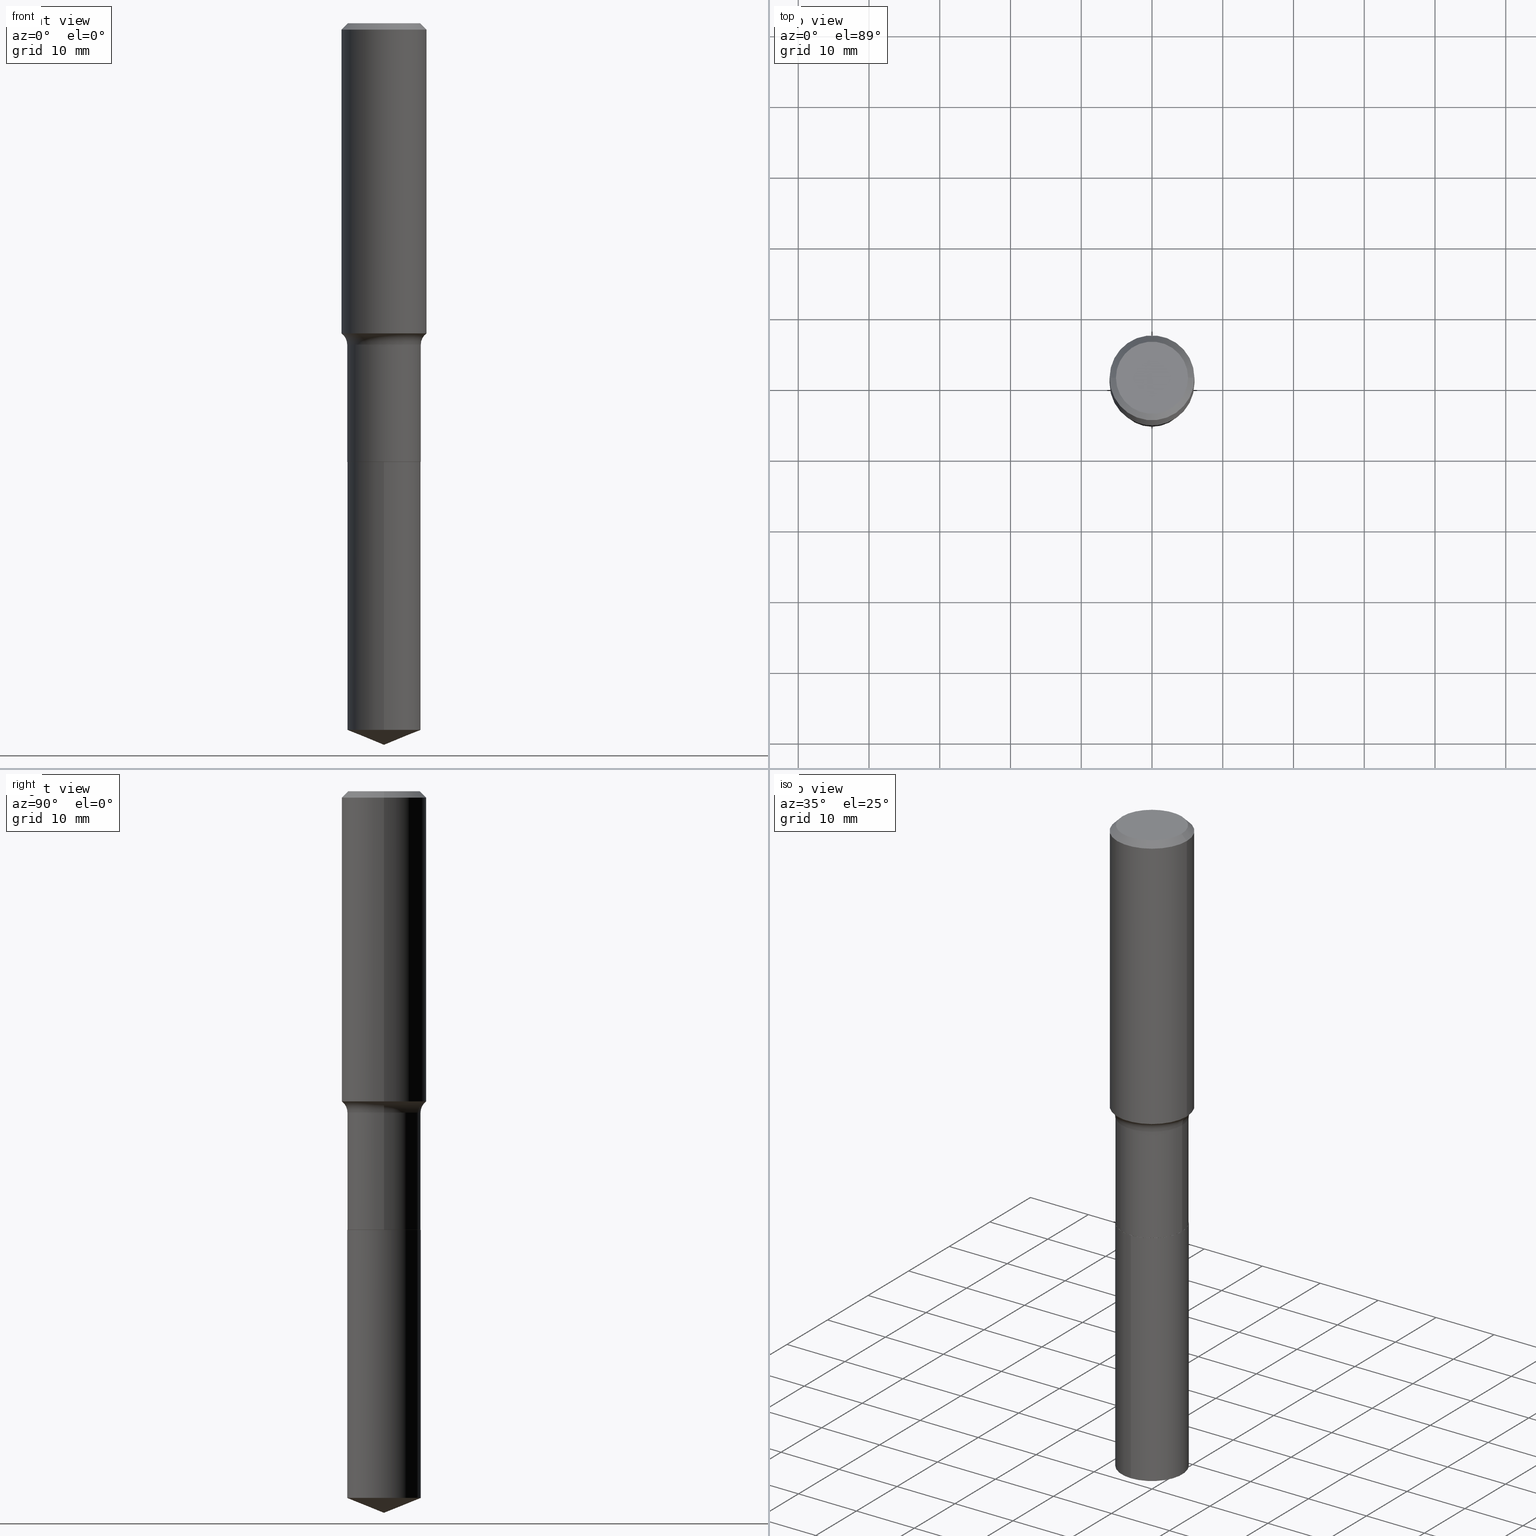
[diagram: canonical four-view strip — front | top / right | iso, engineering-drawing reading convention]
A machine part, canonical four-view strip (front | top / right | iso — engineering-drawing reading convention). The complete STEP part file that produces these views, byte-faithful:
ISO-10303-21;
HEADER;
FILE_DESCRIPTION (( 'STEP AP203' ),
    '1' );
FILE_NAME ('69194.STEP',
    '2024-04-19T17:21:34',
    ( '' ),
    ( '' ),
    'SwSTEP 2.0',
    'SolidWorks 2023',
    '' );
FILE_SCHEMA (( 'CONFIG_CONTROL_DESIGN' ));
ENDSEC;

DATA;
#1 = CARTESIAN_POINT ( 'NONE',  ( 5.969144809017299038E-29, -8.522356799982232966E-15, -2.440900000000000070 ) ) ;
#2 = CALENDAR_DATE ( 2024, 19, 4 ) ;
#3 = EDGE_LOOP ( 'NONE', ( #181, #429 ) ) ;
#4 = DIRECTION ( 'NONE',  ( 2.445425754346182208E-29, -3.491542991526886220E-15, -1.000000000000000000 ) ) ;
#5 = ORIENTED_EDGE ( 'NONE', *, *, #222, .T. ) ;
#6 = CIRCLE ( 'NONE', #45, 0.2047499999999999043 ) ;
#7 = LOCAL_TIME ( 13, 21, 34.00000000000000000, #101 ) ;
#8 = PERSON_AND_ORGANIZATION ( #128, #203 ) ;
#9 = DESIGN_CONTEXT ( 'detailed design', #133, 'design' ) ;
#10 = CYLINDRICAL_SURFACE ( 'NONE', #286, 0.2047499999999999876 ) ;
#11 = DIRECTION ( 'NONE',  ( -2.445468806185136597E-29, 3.491481338843145583E-15, 1.000000000000000000 ) ) ;
#12 = CYLINDRICAL_SURFACE ( 'NONE', #24, 0.2362000000000001043 ) ;
#13 = CIRCLE ( 'NONE', #124, 0.2362000000000002153 ) ;
#14 = AXIS2_PLACEMENT_3D ( 'NONE', #34, #96, #445 ) ;
#15 = EDGE_CURVE ( 'NONE', #164, #171, #13, .T. ) ;
#16 = EDGE_LOOP ( 'NONE', ( #425, #277, #351, #150 ) ) ;
#17 = EDGE_LOOP ( 'NONE', ( #37, #266, #374, #183 ) ) ;
#18 = DIRECTION ( 'NONE',  ( -2.445425754346182208E-29, 3.491542991526886614E-15, 1.000000000000000000 ) ) ;
#19 = AXIS2_PLACEMENT_3D ( 'NONE', #226, #169, #428 ) ;
#20 = CIRCLE ( 'NONE', #14, 0.07799999999999995826 ) ;
#21 = EDGE_CURVE ( 'NONE', #171, #365, #413, .T. ) ;
#22 = EDGE_LOOP ( 'NONE', ( #115, #466, #88 ) ) ;
#23 = VECTOR ( 'NONE', #458, 39.37007874015748143 ) ;
#24 = AXIS2_PLACEMENT_3D ( 'NONE', #469, #313, #355 ) ;
#25 = PERSON_AND_ORGANIZATION ( #128, #203 ) ;
#26 = VERTEX_POINT ( 'NONE', #295 ) ;
#27 = APPROVAL_STATUS ( 'not_yet_approved' ) ;
#28 = DIRECTION ( 'NONE',  ( 1.000000000000000000, -6.982962677686266711E-15, 4.883557194083112901E-29 ) ) ;
#29 = CIRCLE ( 'NONE', #202, 0.2007700000000000040 ) ;
#30 = AXIS2_PLACEMENT_3D ( 'NONE', #289, #442, #104 ) ;
#31 = ORIENTED_EDGE ( 'NONE', *, *, #21, .F. ) ;
#32 = PERSON_AND_ORGANIZATION ( #128, #203 ) ;
#33 = ORIENTED_EDGE ( 'NONE', *, *, #57, .T. ) ;
#34 = CARTESIAN_POINT ( 'NONE',  ( 0.2827499999999998903, -8.220343664172294704E-15, -1.788900000000000157 ) ) ;
#35 = PERSON_AND_ORGANIZATION ( #128, #203 ) ;
#36 = PRODUCT_RELATED_PRODUCT_CATEGORY ( 'detail', '', ( #356 ) ) ;
#37 = ORIENTED_EDGE ( 'NONE', *, *, #65, .F. ) ;
#38 = DIRECTION ( 'NONE',  ( -2.445425754346182208E-29, 3.491542991526886614E-15, 1.000000000000000000 ) ) ;
#39 = CARTESIAN_POINT ( 'NONE',  ( 0.2007700000000000040, -1.560767496960719672E-15, 4.096137381458473721E-18 ) ) ;
#40 = SECURITY_CLASSIFICATION ( '', '', #214 ) ;
#41 = DIRECTION ( 'NONE',  ( -6.982962677686266711E-15, -1.000000000000000000, 3.498761904101790876E-15 ) ) ;
#42 = EDGE_CURVE ( 'NONE', #148, #290, #325, .T. ) ;
#43 = CARTESIAN_POINT ( 'NONE',  ( -0.2827499999999998903, -4.236851381694821069E-15, -1.788900000000000157 ) ) ;
#44 = DIRECTION ( 'NONE',  ( -2.445468806185136597E-29, 3.491481338843145583E-15, 1.000000000000000000 ) ) ;
#45 = AXIS2_PLACEMENT_3D ( 'NONE', #195, #352, #168 ) ;
#46 = ADVANCED_FACE ( 'NONE', ( #146 ), #334, .T. ) ;
#47 =( GEOMETRIC_REPRESENTATION_CONTEXT ( 3 ) GLOBAL_UNCERTAINTY_ASSIGNED_CONTEXT ( ( #261 ) ) GLOBAL_UNIT_ASSIGNED_CONTEXT ( ( #68, #492, #145 ) ) REPRESENTATION_CONTEXT ( 'NONE', 'WORKASPACE' ) );
#48 = CARTESIAN_POINT ( 'NONE',  ( -0.2362000000000001043, 1.678301941865357380E-15, -1.161852468318209317E-29 ) ) ;
#49 = FACE_OUTER_BOUND ( 'NONE', #399, .T. ) ;
#50 = ORIENTED_EDGE ( 'NONE', *, *, #394, .F. ) ;
#51 = LINE ( 'NONE', #173, #400 ) ;
#52 = CC_DESIGN_SECURITY_CLASSIFICATION ( #40, ( #364 ) ) ;
#53 = ORIENTED_EDGE ( 'NONE', *, *, #57, .F. ) ;
#54 = EDGE_CURVE ( 'NONE', #26, #349, #381, .T. ) ;
#55 = AXIS2_PLACEMENT_3D ( 'NONE', #122, #77, #156 ) ;
#56 = PERSON_AND_ORGANIZATION_ROLE ( 'creator' ) ;
#57 = EDGE_CURVE ( 'NONE', #91, #365, #252, .T. ) ;
#58 = ORIENTED_EDGE ( 'NONE', *, *, #241, .T. ) ;
#59 = ORIENTED_EDGE ( 'NONE', *, *, #333, .T. ) ;
#60 = FACE_OUTER_BOUND ( 'NONE', #17, .T. ) ;
#61 = ORIENTED_EDGE ( 'NONE', *, *, #21, .T. ) ;
#62 = APPROVAL_DATE_TIME ( #438, #472 ) ;
#63 = VECTOR ( 'NONE', #292, 39.37007874015748143 ) ;
#64 = AXIS2_PLACEMENT_3D ( 'NONE', #157, #484, #194 ) ;
#65 = EDGE_CURVE ( 'NONE', #164, #349, #245, .T. ) ;
#66 = DIRECTION ( 'NONE',  ( 1.000000000000000000, -6.982962677686266711E-15, 0.000000000000000000 ) ) ;
#67 = DIRECTION ( 'NONE',  ( -2.445468806185136597E-29, 3.491481338843145583E-15, 1.000000000000000000 ) ) ;
#68 =( CONVERSION_BASED_UNIT ( 'INCH', #328 ) LENGTH_UNIT ( ) NAMED_UNIT ( #271 ) );
#69 = CARTESIAN_POINT ( 'NONE',  ( -1.001697619218023151E-46, 1.430158722866391908E-32, 4.096137381448114529E-18 ) ) ;
#70 = CARTESIAN_POINT ( 'NONE',  ( -8.645640321485652588E-28, 1.234414837980197635E-13, 35.35437874015748605 ) ) ;
#71 = EDGE_LOOP ( 'NONE', ( #212, #221, #249, #487 ) ) ;
#72 = CARTESIAN_POINT ( 'NONE',  ( 8.664295980313995239E-31, -1.237031838352134572E-16, -0.03543000000000023214 ) ) ;
#73 = CARTESIAN_POINT ( 'NONE',  ( -1.001697619218023151E-46, 1.430158722866391908E-32, 4.096137381448114529E-18 ) ) ;
#74 = ORIENTED_EDGE ( 'NONE', *, *, #54, .T. ) ;
#75 = CIRCLE ( 'NONE', #255, 0.2047499999999999876 ) ;
#76 = ORIENTED_EDGE ( 'NONE', *, *, #241, .F. ) ;
#77 = DIRECTION ( 'NONE',  ( -2.445468806185136597E-29, 3.491481338843145583E-15, 1.000000000000000000 ) ) ;
#78 = DIRECTION ( 'NONE',  ( -2.445468806185136597E-29, 3.491481338843145583E-15, 1.000000000000000000 ) ) ;
#79 = CARTESIAN_POINT ( 'NONE',  ( 0.2362000000000002153, -7.676766387154458967E-15, -1.726313280162641517 ) ) ;
#80 = CARTESIAN_POINT ( 'NONE',  ( 0.2042499999999999871, -9.948626926899652657E-15, -2.440900000000000070 ) ) ;
#81 = DIRECTION ( 'NONE',  ( 2.445468806185136597E-29, -3.491481338843145583E-15, -1.000000000000000000 ) ) ;
#82 = CARTESIAN_POINT ( 'NONE',  ( 9.820096201727962755E-29, -1.402098919107451851E-14, -4.015699999999999825 ) ) ;
#83 = CONICAL_SURFACE ( 'NONE', #19, 97.44436430772944391, 1.186823891356148630 ) ;
#84 = APPROVAL ( #151, 'UNSPECIFIED' ) ;
#85 = AXIS2_PLACEMENT_3D ( 'NONE', #237, #433, #361 ) ;
#86 = ORIENTED_EDGE ( 'NONE', *, *, #387, .F. ) ;
#87 = FACE_OUTER_BOUND ( 'NONE', #178, .T. ) ;
#88 = ORIENTED_EDGE ( 'NONE', *, *, #264, .F. ) ;
#89 = CIRCLE ( 'NONE', #176, 0.2047499999999999043 ) ;
#90 = DIRECTION ( 'NONE',  ( -2.445468806185136597E-29, 3.491481338843145583E-15, 1.000000000000000000 ) ) ;
#91 = VERTEX_POINT ( 'NONE', #39 ) ;
#92 = ADVANCED_FACE ( 'NONE', ( #193 ), #10, .T. ) ;
#93 = VECTOR ( 'NONE', #196, 39.37007874015748143 ) ;
#94 = AXIS2_PLACEMENT_3D ( 'NONE', #453, #4, #114 ) ;
#95 = LOCAL_TIME ( 13, 21, 34.00000000000000000, #377 ) ;
#96 = DIRECTION ( 'NONE',  ( -6.982962677686266711E-15, -1.000000000000000000, 3.491481338843145583E-15 ) ) ;
#97 = ORIENTED_EDGE ( 'NONE', *, *, #398, .F. ) ;
#98 = EDGE_CURVE ( 'NONE', #290, #188, #224, .T. ) ;
#99 = CARTESIAN_POINT ( 'NONE',  ( 5.969144809017299038E-29, -8.522356799982232966E-15, -2.440900000000000070 ) ) ;
#100 = DIRECTION ( 'NONE',  ( 1.000000000000000000, -6.982962677686266711E-15, 4.876176775795935793E-29 ) ) ;
#101 = COORDINATED_UNIVERSAL_TIME_OFFSET ( 5, 0, .BEHIND. ) ;
#102 = PRODUCT_DEFINITION ( 'UNKNOWN', '', #364, #9 ) ;
#103 = DIRECTION ( 'NONE',  ( 1.000000000000000000, -6.982962677686266711E-15, 4.876176775795936353E-29 ) ) ;
#104 = DIRECTION ( 'NONE',  ( 1.000000000000000000, 0.000000000000000000, 0.000000000000000000 ) ) ;
#105 = VECTOR ( 'NONE', #218, 39.37007874015748143 ) ;
#106 = AXIS2_PLACEMENT_3D ( 'NONE', #267, #393, #200 ) ;
#107 = CARTESIAN_POINT ( 'NONE',  ( -0.2047499999999999598, 1.454836251468804845E-15, -1.007151959729691630E-29 ) ) ;
#108 = LINE ( 'NONE', #482, #192 ) ;
#109 = EDGE_LOOP ( 'NONE', ( #244, #119, #282, #407 ) ) ;
#110 = CARTESIAN_POINT ( 'NONE',  ( 9.820096201727964997E-29, -1.402098919107452008E-14, -4.015699999999999825 ) ) ;
#111 = DIRECTION ( 'NONE',  ( -2.445425754346182208E-29, 3.491542991526886614E-15, 1.000000000000000000 ) ) ;
#112 = VERTEX_POINT ( 'NONE', #344 ) ;
#113 = DIRECTION ( 'NONE',  ( -1.000000000000000000, 6.982962677686266711E-15, 0.000000000000000000 ) ) ;
#114 = DIRECTION ( 'NONE',  ( 6.982962677686265922E-15, 1.000000000000000000, -3.491542991526886220E-15 ) ) ;
#115 = ORIENTED_EDGE ( 'NONE', *, *, #177, .F. ) ;
#116 = TOROIDAL_SURFACE ( 'NONE', #383, 0.2827499999999998903, 0.07799999999999997213 ) ;
#117 = APPROVAL_DATE_TIME ( #467, #84 ) ;
#118 = DIRECTION ( 'NONE',  ( -2.445468806185136597E-29, 3.491481338843145583E-15, 1.000000000000000000 ) ) ;
#119 = ORIENTED_EDGE ( 'NONE', *, *, #264, .T. ) ;
#120 = EDGE_CURVE ( 'NONE', #148, #26, #155, .T. ) ;
#121 = EDGE_LOOP ( 'NONE', ( #475, #74, #300, #97 ) ) ;
#122 = CARTESIAN_POINT ( 'NONE',  ( 0.000000000000000000, 0.000000000000000000, 0.000000000000000000 ) ) ;
#123 = VERTEX_POINT ( 'NONE', #465 ) ;
#124 = AXIS2_PLACEMENT_3D ( 'NONE', #331, #11, #66 ) ;
#125 = VECTOR ( 'NONE', #239, 39.37007874015748143 ) ;
#126 = DIRECTION ( 'NONE',  ( -2.445425754346182208E-29, 3.491542991526886614E-15, 1.000000000000000000 ) ) ;
#127 = ORIENTED_EDGE ( 'NONE', *, *, #291, .F. ) ;
#128 = PERSON ( 'UNSPECIFIED', 'UNSPECIFIED', 'UNSPECIFIED', ('UNSPECIFIED'), ('UNSPECIFIED'), ('UNSPECIFIED') ) ;
#129 = CC_DESIGN_PERSON_AND_ORGANIZATION_ASSIGNMENT ( #25, #217, ( #356 ) ) ;
#130 = EDGE_LOOP ( 'NONE', ( #58, #404 ) ) ;
#131 = VECTOR ( 'NONE', #375, 39.37007874015748143 ) ;
#132 = CIRCLE ( 'NONE', #479, 0.2042499999999999871 ) ;
#133 = APPLICATION_CONTEXT ( 'configuration controlled 3d designs of mechanical parts and assemblies' ) ;
#134 = CARTESIAN_POINT ( 'NONE',  ( -0.2361999999999999933, 1.525672600634282748E-15, -0.03543000000000023214 ) ) ;
#135 = ADVANCED_FACE ( 'NONE', ( #238 ), #83, .T. ) ;
#136 = CC_DESIGN_PERSON_AND_ORGANIZATION_ASSIGNMENT ( #209, #189, ( #364 ) ) ;
#137 = EDGE_LOOP ( 'NONE', ( #53, #320, #185, #262 ) ) ;
#138 = DIRECTION ( 'NONE',  ( 1.000000000000000000, -6.982962677686265922E-15, 0.000000000000000000 ) ) ;
#139 = LINE ( 'NONE', #201, #471 ) ;
#140 = ADVANCED_FACE ( 'NONE', ( #232 ), #357, .T. ) ;
#141 = CALENDAR_DATE ( 2024, 19, 4 ) ;
#142 = AXIS2_PLACEMENT_3D ( 'NONE', #278, #81, #167 ) ;
#143 = DIRECTION ( 'NONE',  ( 1.000000000000000000, -6.982962677686265922E-15, 0.000000000000000000 ) ) ;
#144 = AXIS2_PLACEMENT_3D ( 'NONE', #69, #118, #220 ) ;
#145 =( NAMED_UNIT ( * ) SI_UNIT ( $, .STERADIAN. ) SOLID_ANGLE_UNIT ( ) );
#146 = FACE_OUTER_BOUND ( 'NONE', #16, .T. ) ;
#147 = DATE_AND_TIME ( #401, #256 ) ;
#148 = VERTEX_POINT ( 'NONE', #346 ) ;
#149 = EDGE_LOOP ( 'NONE', ( #59, #464, #76, #410 ) ) ;
#150 = ORIENTED_EDGE ( 'NONE', *, *, #403, .F. ) ;
#151 = APPROVAL_STATUS ( 'not_yet_approved' ) ;
#152 = DIRECTION ( 'NONE',  ( -2.445425754346182208E-29, 3.491542991526886614E-15, 1.000000000000000000 ) ) ;
#153 = CARTESIAN_POINT ( 'NONE',  ( 5.969144809017299038E-29, -8.522356799982232966E-15, -2.440900000000000070 ) ) ;
#154 = DIRECTION ( 'NONE',  ( -2.445425754346182208E-29, 3.491542991526886220E-15, 1.000000000000000000 ) ) ;
#155 = LINE ( 'NONE', #306, #23 ) ;
#156 = DIRECTION ( 'NONE',  ( 1.000000000000000000, -6.982962677686266711E-15, 4.876176775795936353E-29 ) ) ;
#157 = CARTESIAN_POINT ( 'NONE',  ( 5.967922074614207358E-29, -8.520611059312812251E-15, -2.440399999999999903 ) ) ;
#158 = ADVANCED_FACE ( 'NONE', ( #49 ), #12, .T. ) ;
#159 = AXIS2_PLACEMENT_3D ( 'NONE', #70, #111, #41 ) ;
#160 = DIRECTION ( 'NONE',  ( -1.000000000000000000, 6.982962677686265922E-15, -4.876176775795935793E-29 ) ) ;
#161 = DIRECTION ( 'NONE',  ( 1.000000000000000000, -6.982962677686268288E-15, 0.000000000000000000 ) ) ;
#162 = PLANE ( 'NONE',  #85 ) ;
#163 = ORIENTED_EDGE ( 'NONE', *, *, #403, .T. ) ;
#164 = VERTEX_POINT ( 'NONE', #315 ) ;
#165 = DIRECTION ( 'NONE',  ( 2.445468806185136597E-29, -3.491481338843145583E-15, -1.000000000000000000 ) ) ;
#166 = ORIENTED_EDGE ( 'NONE', *, *, #15, .F. ) ;
#167 = DIRECTION ( 'NONE',  ( -1.000000000000000000, 6.982962677686266711E-15, 0.000000000000000000 ) ) ;
#168 = DIRECTION ( 'NONE',  ( 1.000000000000000000, -6.982962677686265922E-15, 0.000000000000000000 ) ) ;
#169 = DIRECTION ( 'NONE',  ( -2.445425754346182208E-29, 3.491542991526886614E-15, 1.000000000000000000 ) ) ;
#170 = ADVANCED_FACE ( 'NONE', ( #87 ), #395, .F. ) ;
#171 = VERTEX_POINT ( 'NONE', #79 ) ;
#172 = AXIS2_PLACEMENT_3D ( 'NONE', #457, #78, #486 ) ;
#173 = CARTESIAN_POINT ( 'NONE',  ( 0.2047499999999999598, -1.429761608256262896E-15, 9.983971948442177163E-30 ) ) ;
#174 = EDGE_LOOP ( 'NONE', ( #415, #33, #5, #50 ) ) ;
#175 = LINE ( 'NONE', #134, #125 ) ;
#176 = AXIS2_PLACEMENT_3D ( 'NONE', #323, #402, #138 ) ;
#177 = EDGE_CURVE ( 'NONE', #342, #450, #350, .T. ) ;
#178 = EDGE_LOOP ( 'NONE', ( #243, #318 ) ) ;
#179 = EDGE_LOOP ( 'NONE', ( #309, #483, #310, #213 ) ) ;
#180 = PERSON_AND_ORGANIZATION_ROLE ( 'classification_officer' ) ;
#181 = ORIENTED_EDGE ( 'NONE', *, *, #197, .F. ) ;
#182 = CARTESIAN_POINT ( 'NONE',  ( 0.2362000000000001043, -1.649375784469496920E-15, 1.151752954443000508E-29 ) ) ;
#183 = ORIENTED_EDGE ( 'NONE', *, *, #354, .T. ) ;
#184 = DATE_AND_TIME ( #2, #199 ) ;
#185 = ORIENTED_EDGE ( 'NONE', *, *, #394, .T. ) ;
#186 = DIRECTION ( 'NONE',  ( -2.445425754346182208E-29, 3.491542991526886614E-15, 1.000000000000000000 ) ) ;
#187 = DIRECTION ( 'NONE',  ( -1.000000000000000000, 7.105427357601001859E-15, 0.000000000000000000 ) ) ;
#188 = VERTEX_POINT ( 'NONE', #273 ) ;
#189 = PERSON_AND_ORGANIZATION_ROLE ( 'design_supplier' ) ;
#190 = DIRECTION ( 'NONE',  ( -6.982962677686265922E-15, -1.000000000000000000, 4.002707683024561674E-15 ) ) ;
#191 = CONICAL_SURFACE ( 'NONE', #159, 97.44436430772944391, 1.186823891356148630 ) ;
#192 = VECTOR ( 'NONE', #268, 39.37007874015748143 ) ;
#193 = FACE_OUTER_BOUND ( 'NONE', #109, .T. ) ;
#194 = DIRECTION ( 'NONE',  ( 1.000000000000000000, -6.982962677686268288E-15, 0.000000000000000000 ) ) ;
#195 = CARTESIAN_POINT ( 'NONE',  ( 4.374699147384591399E-29, -6.245910967056503960E-15, -1.788900000000000157 ) ) ;
#196 = DIRECTION ( 'NONE',  ( 0.7071067811866199593, -2.468850131083015945E-15, 0.7071067811864750752 ) ) ;
#197 = EDGE_CURVE ( 'NONE', #290, #148, #132, .T. ) ;
#198 = AXIS2_PLACEMENT_3D ( 'NONE', #444, #67, #103 ) ;
#199 = LOCAL_TIME ( 13, 21, 34.00000000000000000, #332 ) ;
#200 = DIRECTION ( 'NONE',  ( 1.000000000000000000, -6.982962677686266711E-15, 0.000000000000000000 ) ) ;
#201 = CARTESIAN_POINT ( 'NONE',  ( 1.454836251468864404E-15, 0.2047499999999914388, -2.440900000000000514 ) ) ;
#202 = AXIS2_PLACEMENT_3D ( 'NONE', #73, #223, #385 ) ;
#203 = ORGANIZATION ( 'UNSPECIFIED', 'UNSPECIFIED', '' ) ;
#204 = DIRECTION ( 'NONE',  ( -2.445468806185136877E-29, 3.491481338843145188E-15, 1.000000000000000000 ) ) ;
#205 = EDGE_LOOP ( 'NONE', ( #127, #336, #248 ) ) ;
#206 = DIRECTION ( 'NONE',  ( 1.000000000000000000, -6.982962677686265922E-15, 0.000000000000000000 ) ) ;
#207 = ADVANCED_FACE ( 'NONE', ( #259 ), #335, .F. ) ;
#208 = CIRCLE ( 'NONE', #285, 0.2047499999999999876 ) ;
#209 = PERSON_AND_ORGANIZATION ( #128, #203 ) ;
#210 = CARTESIAN_POINT ( 'NONE',  ( 5.969144809017299038E-29, -8.522356799982232966E-15, -2.440900000000000070 ) ) ;
#211 = PERSON_AND_ORGANIZATION ( #128, #203 ) ;
#212 = ORIENTED_EDGE ( 'NONE', *, *, #120, .F. ) ;
#213 = ORIENTED_EDGE ( 'NONE', *, *, #98, .F. ) ;
#214 = SECURITY_CLASSIFICATION_LEVEL ( 'unclassified' ) ;
#215 = CONICAL_SURFACE ( 'NONE', #172, 0.2042499999999999871, 0.7853981633975507526 ) ;
#216 = DIRECTION ( 'NONE',  ( -2.445468806185136597E-29, 3.491481338843145583E-15, 1.000000000000000000 ) ) ;
#217 = PERSON_AND_ORGANIZATION_ROLE ( 'design_owner' ) ;
#218 = DIRECTION ( 'NONE',  ( 0.7071067811865452413, -7.319954787623248157E-15, -0.7071067811865497932 ) ) ;
#219 =( LENGTH_UNIT ( ) NAMED_UNIT ( * ) SI_UNIT ( $, .METRE. ) );
#220 = DIRECTION ( 'NONE',  ( 1.000000000000000000, -6.982962677686266711E-15, 4.876140833081945105E-29 ) ) ;
#221 = ORIENTED_EDGE ( 'NONE', *, *, #42, .T. ) ;
#222 = EDGE_CURVE ( 'NONE', #365, #420, #347, .T. ) ;
#223 = DIRECTION ( 'NONE',  ( -2.445468806185136597E-29, 3.491481338843145583E-15, 1.000000000000000000 ) ) ;
#224 = LINE ( 'NONE', #386, #93 ) ;
#225 = ADVANCED_BREP_SHAPE_REPRESENTATION ( '69194', ( #490, #317, #30 ), #47 ) ;
#226 = CARTESIAN_POINT ( 'NONE',  ( -8.645640321485652588E-28, 1.234414837980197635E-13, 35.35437874015748605 ) ) ;
#227 = DIRECTION ( 'NONE',  ( -6.474490251793187306E-15, -0.9271838545667877574, 0.3746065934159110156 ) ) ;
#228 = DIRECTION ( 'NONE',  ( 6.588037525764801546E-15, 0.9271838545667904219, 0.3746065934159046318 ) ) ;
#229 = ORIENTED_EDGE ( 'NONE', *, *, #470, .F. ) ;
#230 = DIRECTION ( 'NONE',  ( -6.982962677686265922E-15, -1.000000000000000000, 4.002707683024561674E-15 ) ) ;
#231 = AXIS2_PLACEMENT_3D ( 'NONE', #265, #418, #28 ) ;
#232 = FACE_OUTER_BOUND ( 'NONE', #137, .T. ) ;
#233 = CARTESIAN_POINT ( 'NONE',  ( 4.374699147384591399E-29, -6.245910967056503960E-15, -1.788900000000000157 ) ) ;
#234 = ORIENTED_EDGE ( 'NONE', *, *, #65, .T. ) ;
#235 = EDGE_CURVE ( 'NONE', #91, #406, #358, .T. ) ;
#236 = FACE_OUTER_BOUND ( 'NONE', #3, .T. ) ;
#237 = CARTESIAN_POINT ( 'NONE',  ( 5.969144809017299038E-29, -8.522356799982232966E-15, -2.440900000000000070 ) ) ;
#238 = FACE_OUTER_BOUND ( 'NONE', #22, .T. ) ;
#239 = DIRECTION ( 'NONE',  ( -0.7071067811865452413, 2.468850131082233000E-15, -0.7071067811865497932 ) ) ;
#240 = EDGE_LOOP ( 'NONE', ( #376, #281, #61, #86 ) ) ;
#241 = EDGE_CURVE ( 'NONE', #370, #123, #422, .T. ) ;
#242 = VECTOR ( 'NONE', #227, 39.37007874015749564 ) ;
#243 = ORIENTED_EDGE ( 'NONE', *, *, #305, .T. ) ;
#244 = ORIENTED_EDGE ( 'NONE', *, *, #485, .F. ) ;
#245 = CIRCLE ( 'NONE', #270, 0.07799999999999995826 ) ;
#246 = CC_DESIGN_APPROVAL ( #312, ( #102 ) ) ;
#247 = PERSON_AND_ORGANIZATION_ROLE ( 'creator' ) ;
#248 = ORIENTED_EDGE ( 'NONE', *, *, #333, .F. ) ;
#249 = ORIENTED_EDGE ( 'NONE', *, *, #98, .T. ) ;
#250 = APPROVAL_STATUS ( 'not_yet_approved' ) ;
#251 = CARTESIAN_POINT ( 'NONE',  ( 5.969144809017299038E-29, -8.522356799982232966E-15, -2.440900000000000070 ) ) ;
#252 = LINE ( 'NONE', #257, #105 ) ;
#253 = CARTESIAN_POINT ( 'NONE',  ( 9.617904982688033762E-29, -1.373200300964548210E-14, -3.932975630260252764 ) ) ;
#254 = APPLICATION_PROTOCOL_DEFINITION ( 'international standard', 'config_control_design', 1994, #321 ) ;
#255 = AXIS2_PLACEMENT_3D ( 'NONE', #253, #18, #263 ) ;
#256 = LOCAL_TIME ( 13, 21, 34.00000000000000000, #288 ) ;
#257 = CARTESIAN_POINT ( 'NONE',  ( 0.2361999999999999933, -1.744152810908849053E-15, -0.03543000000000023214 ) ) ;
#258 = APPROVAL_DATE_TIME ( #147, #312 ) ;
#259 = FACE_OUTER_BOUND ( 'NONE', #130, .T. ) ;
#260 = CARTESIAN_POINT ( 'NONE',  ( -1.429761608256166261E-15, -0.2047500000000136156, -3.932975630260252320 ) ) ;
#261 = UNCERTAINTY_MEASURE_WITH_UNIT (LENGTH_MEASURE( 1.000000000000000082E-05 ), #68, 'distance_accuracy_value', 'NONE');
#262 = ORIENTED_EDGE ( 'NONE', *, *, #387, .T. ) ;
#263 = DIRECTION ( 'NONE',  ( -6.982962677686265922E-15, -1.000000000000000000, 2.668471788683041116E-15 ) ) ;
#264 = EDGE_CURVE ( 'NONE', #450, #427, #411, .T. ) ;
#265 = CARTESIAN_POINT ( 'NONE',  ( 4.374699147384591399E-29, -6.245910967056503960E-15, -1.788900000000000157 ) ) ;
#266 = ORIENTED_EDGE ( 'NONE', *, *, #389, .F. ) ;
#267 = CARTESIAN_POINT ( 'NONE',  ( 4.221645276340882114E-29, -6.027390602684960864E-15, -1.726313280162641517 ) ) ;
#268 = DIRECTION ( 'NONE',  ( -2.445425754346182208E-29, 3.491542991526886220E-15, 1.000000000000000000 ) ) ;
#269 = CC_DESIGN_DATE_AND_TIME_ASSIGNMENT ( #184, #447, ( #40 ) ) ;
#270 = AXIS2_PLACEMENT_3D ( 'NONE', #43, #378, #187 ) ;
#271 = DIMENSIONAL_EXPONENTS ( 1.000000000000000000, 0.000000000000000000, 0.000000000000000000, 0.000000000000000000, 0.000000000000000000, 0.000000000000000000, 0.000000000000000000 ) ;
#272 = AXIS2_PLACEMENT_3D ( 'NONE', #210, #367, #143 ) ;
#273 = CARTESIAN_POINT ( 'NONE',  ( 0.2047499999999999876, -9.950372667569074950E-15, -2.440399999999999903 ) ) ;
#274 = CARTESIAN_POINT ( 'NONE',  ( -5.008488096090115757E-47, 7.150793614331959538E-33, 2.048068690724057264E-18 ) ) ;
#275 = SHAPE_DEFINITION_REPRESENTATION ( #478, #225 ) ;
#276 = DIRECTION ( 'NONE',  ( -6.982962677686265922E-15, -1.000000000000000000, 2.668471788683041116E-15 ) ) ;
#277 = ORIENTED_EDGE ( 'NONE', *, *, #477, .T. ) ;
#278 = CARTESIAN_POINT ( 'NONE',  ( 8.664295980313995239E-31, -1.237031838352134572E-16, -0.03543000000000023214 ) ) ;
#279 = CARTESIAN_POINT ( 'NONE',  ( -1.429761608256203140E-15, -0.2047500000000085085, -2.440899999999999181 ) ) ;
#280 = CONICAL_SURFACE ( 'NONE', #322, 0.2361999999999999933, 0.7853981633974450594 ) ;
#281 = ORIENTED_EDGE ( 'NONE', *, *, #15, .T. ) ;
#282 = ORIENTED_EDGE ( 'NONE', *, *, #474, .T. ) ;
#283 = DIRECTION ( 'NONE',  ( 1.000000000000000000, -6.982962677686266711E-15, 4.883557194083112901E-29 ) ) ;
#284 = CC_DESIGN_PERSON_AND_ORGANIZATION_ASSIGNMENT ( #211, #56, ( #102 ) ) ;
#285 = AXIS2_PLACEMENT_3D ( 'NONE', #388, #44, #161 ) ;
#286 = AXIS2_PLACEMENT_3D ( 'NONE', #153, #304, #419 ) ;
#287 = AXIS2_PLACEMENT_3D ( 'NONE', #454, #379, #100 ) ;
#288 = COORDINATED_UNIVERSAL_TIME_OFFSET ( 5, 0, .BEHIND. ) ;
#289 = CARTESIAN_POINT ( 'NONE',  ( 0.000000000000000000, 0.000000000000000000, 0.000000000000000000 ) ) ;
#290 = VERTEX_POINT ( 'NONE', #80 ) ;
#291 = EDGE_CURVE ( 'NONE', #342, #427, #302, .T. ) ;
#292 = DIRECTION ( 'NONE',  ( -2.445468806185136877E-29, 3.491481338843145188E-15, 1.000000000000000000 ) ) ;
#293 = MECHANICAL_CONTEXT ( 'NONE', #321, 'mechanical' ) ;
#294 = FACE_OUTER_BOUND ( 'NONE', #205, .T. ) ;
#295 = CARTESIAN_POINT ( 'NONE',  ( -0.2047499999999999876, -5.928424761715852274E-15, -2.440399999999999903 ) ) ;
#296 = AXIS2_PLACEMENT_3D ( 'NONE', #274, #424, #160 ) ;
#297 = PERSON_AND_ORGANIZATION ( #128, #203 ) ;
#298 = AXIS2_PLACEMENT_3D ( 'NONE', #72, #382, #343 ) ;
#299 = CARTESIAN_POINT ( 'NONE',  ( 8.664295980313995239E-31, -1.237031838352134572E-16, -0.03543000000000023214 ) ) ;
#300 = ORIENTED_EDGE ( 'NONE', *, *, #354, .F. ) ;
#301 = APPROVAL_ROLE ( '' ) ;
#302 = LINE ( 'NONE', #110, #242 ) ;
#303 = CYLINDRICAL_SURFACE ( 'NONE', #287, 0.2362000000000001043 ) ;
#304 = DIRECTION ( 'NONE',  ( -2.445425754346182208E-29, 3.491542991526886614E-15, 1.000000000000000000 ) ) ;
#305 = EDGE_CURVE ( 'NONE', #406, #91, #29, .T. ) ;
#306 = CARTESIAN_POINT ( 'NONE',  ( -0.2042499999999999871, -7.071073262192228822E-15, -2.440900000000000070 ) ) ;
#307 = CIRCLE ( 'NONE', #106, 0.2362000000000002153 ) ;
#308 = EDGE_CURVE ( 'NONE', #188, #26, #208, .T. ) ;
#309 = ORIENTED_EDGE ( 'NONE', *, *, #197, .T. ) ;
#310 = ORIENTED_EDGE ( 'NONE', *, *, #308, .F. ) ;
#311 = CYLINDRICAL_SURFACE ( 'NONE', #55, 0.2047499999999999598 ) ;
#312 = APPROVAL ( #250, 'UNSPECIFIED' ) ;
#313 = DIRECTION ( 'NONE',  ( -2.445468806185136597E-29, 3.491481338843145583E-15, 1.000000000000000000 ) ) ;
#314 = AXIS2_PLACEMENT_3D ( 'NONE', #330, #126, #230 ) ;
#315 = CARTESIAN_POINT ( 'NONE',  ( -0.2362000000000002153, -4.349088660819602892E-15, -1.726313280162641517 ) ) ;
#316 = APPROVAL_PERSON_ORGANIZATION ( #8, #84, #301 ) ;
#317 = MANIFOLD_SOLID_BREP ( 'Body-Move/Copy2[2]', #372 ) ;
#318 = ORIENTED_EDGE ( 'NONE', *, *, #235, .T. ) ;
#319 = ADVANCED_FACE ( 'NONE', ( #473 ), #116, .F. ) ;
#320 = ORIENTED_EDGE ( 'NONE', *, *, #305, .F. ) ;
#321 = APPLICATION_CONTEXT ( 'configuration controlled 3d designs of mechanical parts and assemblies' ) ;
#322 = AXIS2_PLACEMENT_3D ( 'NONE', #461, #165, #113 ) ;
#323 = CARTESIAN_POINT ( 'NONE',  ( 4.374699147384591399E-29, -6.245910967056503960E-15, -1.788900000000000157 ) ) ;
#324 = APPROVAL_ROLE ( '' ) ;
#325 = CIRCLE ( 'NONE', #337, 0.2042499999999999871 ) ;
#326 = EDGE_CURVE ( 'NONE', #164, #420, #391, .T. ) ;
#327 = TOROIDAL_SURFACE ( 'NONE', #231, 0.2827499999999998903, 0.07799999999999997213 ) ;
#328 = LENGTH_MEASURE_WITH_UNIT ( LENGTH_MEASURE( 0.02539999999999999897 ), #219 );
#329 = CC_DESIGN_APPROVAL ( #84, ( #40 ) ) ;
#330 = CARTESIAN_POINT ( 'NONE',  ( 5.969144809017299038E-29, -8.522356799982232966E-15, -2.440900000000000070 ) ) ;
#331 = CARTESIAN_POINT ( 'NONE',  ( 4.221645276340882114E-29, -6.027390602684960864E-15, -1.726313280162641517 ) ) ;
#332 = COORDINATED_UNIVERSAL_TIME_OFFSET ( 5, 0, .BEHIND. ) ;
#333 = EDGE_CURVE ( 'NONE', #427, #450, #75, .T. ) ;
#334 = CYLINDRICAL_SURFACE ( 'NONE', #198, 0.2047499999999999598 ) ;
#335 = PLANE ( 'NONE',  #94 ) ;
#336 = ORIENTED_EDGE ( 'NONE', *, *, #177, .T. ) ;
#337 = AXIS2_PLACEMENT_3D ( 'NONE', #1, #216, #441 ) ;
#338 = PERSON_AND_ORGANIZATION ( #128, #203 ) ;
#339 = CIRCLE ( 'NONE', #298, 0.2361999999999999933 ) ;
#340 = CARTESIAN_POINT ( 'NONE',  ( 9.617904982688033762E-29, -1.373200300964548210E-14, -3.932975630260252764 ) ) ;
#341 = FACE_OUTER_BOUND ( 'NONE', #71, .T. ) ;
#342 = VERTEX_POINT ( 'NONE', #82 ) ;
#343 = DIRECTION ( 'NONE',  ( 1.000000000000000000, -6.982962677686266711E-15, 0.000000000000000000 ) ) ;
#344 = CARTESIAN_POINT ( 'NONE',  ( 0.2047499999999999043, -7.675672575312766658E-15, -1.788900000000000157 ) ) ;
#345 = FACE_OUTER_BOUND ( 'NONE', #121, .T. ) ;
#346 = CARTESIAN_POINT ( 'NONE',  ( -0.2042499999999999871, -7.068424035018117621E-15, -2.440900000000000070 ) ) ;
#347 = CIRCLE ( 'NONE', #397, 0.2361999999999999933 ) ;
#348 = CIRCLE ( 'NONE', #64, 0.2047499999999999876 ) ;
#349 = VERTEX_POINT ( 'NONE', #421 ) ;
#350 = LINE ( 'NONE', #426, #363 ) ;
#351 = ORIENTED_EDGE ( 'NONE', *, *, #398, .T. ) ;
#352 = DIRECTION ( 'NONE',  ( -2.445468806185136597E-29, 3.491481338843145583E-15, 1.000000000000000000 ) ) ;
#353 = DIRECTION ( 'NONE',  ( -2.445468806185136877E-29, 3.491481338843145188E-15, 1.000000000000000000 ) ) ;
#354 = EDGE_CURVE ( 'NONE', #112, #349, #6, .T. ) ;
#355 = DIRECTION ( 'NONE',  ( 1.000000000000000000, -6.982962677686266711E-15, 4.876176775795935793E-29 ) ) ;
#356 = PRODUCT ( '69194', '69194', '', ( #293 ) ) ;
#357 = CONICAL_SURFACE ( 'NONE', #142, 0.2361999999999999933, 0.7853981633974450594 ) ;
#358 = CIRCLE ( 'NONE', #144, 0.2007700000000000040 ) ;
#359 = ADVANCED_FACE ( 'NONE', ( #468 ), #280, .T. ) ;
#360 = ORIENTED_EDGE ( 'NONE', *, *, #222, .F. ) ;
#361 = DIRECTION ( 'NONE',  ( 1.000000000000000000, -6.982962677686265922E-15, 4.876176775795935793E-29 ) ) ;
#362 = ADVANCED_FACE ( 'NONE', ( #345 ), #311, .T. ) ;
#363 = VECTOR ( 'NONE', #228, 39.37007874015748143 ) ;
#364 = PRODUCT_DEFINITION_FORMATION_WITH_SPECIFIED_SOURCE ( 'ANY', '', #356, .NOT_KNOWN. ) ;
#365 = VERTEX_POINT ( 'NONE', #416 ) ;
#366 = DATE_AND_TIME ( #141, #95 ) ;
#367 = DIRECTION ( 'NONE',  ( -2.445468806185136597E-29, 3.491481338843145583E-15, 1.000000000000000000 ) ) ;
#368 = FACE_OUTER_BOUND ( 'NONE', #240, .T. ) ;
#369 = APPLICATION_PROTOCOL_DEFINITION ( 'international standard', 'config_control_design', 1994, #133 ) ;
#370 = VERTEX_POINT ( 'NONE', #279 ) ;
#371 = CYLINDRICAL_SURFACE ( 'NONE', #314, 0.2047499999999999876 ) ;
#372 = CLOSED_SHELL ( 'NONE', ( #417, #359, #158, #319, #362, #46, #434, #462, #140, #170, #443, #456 ) ) ;
#373 = CC_DESIGN_PERSON_AND_ORGANIZATION_ASSIGNMENT ( #297, #247, ( #364 ) ) ;
#374 = ORIENTED_EDGE ( 'NONE', *, *, #470, .T. ) ;
#375 = DIRECTION ( 'NONE',  ( -2.445468806185136877E-29, 3.491481338843145188E-15, 1.000000000000000000 ) ) ;
#376 = ORIENTED_EDGE ( 'NONE', *, *, #326, .F. ) ;
#377 = COORDINATED_UNIVERSAL_TIME_OFFSET ( 5, 0, .BEHIND. ) ;
#378 = DIRECTION ( 'NONE',  ( 7.105427357601001859E-15, 1.000000000000000000, -3.491481338843145583E-15 ) ) ;
#379 = DIRECTION ( 'NONE',  ( -2.445468806185136597E-29, 3.491481338843145583E-15, 1.000000000000000000 ) ) ;
#380 = CARTESIAN_POINT ( 'NONE',  ( 5.969144809017299038E-29, -8.522356799982232966E-15, -2.440900000000000070 ) ) ;
#381 = LINE ( 'NONE', #107, #131 ) ;
#382 = DIRECTION ( 'NONE',  ( -2.445468806185136597E-29, 3.491481338843145583E-15, 1.000000000000000000 ) ) ;
#383 = AXIS2_PLACEMENT_3D ( 'NONE', #233, #90, #283 ) ;
#384 = APPROVAL_PERSON_ORGANIZATION ( #35, #472, #440 ) ;
#385 = DIRECTION ( 'NONE',  ( 1.000000000000000000, -6.982962677686266711E-15, 4.876140833081945105E-29 ) ) ;
#386 = CARTESIAN_POINT ( 'NONE',  ( 0.2042499999999999871, -9.948626926899652657E-15, -2.440900000000000070 ) ) ;
#387 = EDGE_CURVE ( 'NONE', #420, #365, #339, .T. ) ;
#388 = CARTESIAN_POINT ( 'NONE',  ( 5.967922074614207358E-29, -8.520611059312812251E-15, -2.440399999999999903 ) ) ;
#389 = EDGE_CURVE ( 'NONE', #171, #164, #307, .T. ) ;
#390 = VECTOR ( 'NONE', #353, 39.37007874015748143 ) ;
#391 = LINE ( 'NONE', #48, #390 ) ;
#392 = DIRECTION ( 'NONE',  ( -2.445468806185136597E-29, 3.491481338843145583E-15, 1.000000000000000000 ) ) ;
#393 = DIRECTION ( 'NONE',  ( -2.445468806185136597E-29, 3.491481338843145583E-15, 1.000000000000000000 ) ) ;
#394 = EDGE_CURVE ( 'NONE', #406, #420, #175, .T. ) ;
#395 = PLANE ( 'NONE',  #296 ) ;
#396 = ORIENTED_EDGE ( 'NONE', *, *, #389, .T. ) ;
#397 = AXIS2_PLACEMENT_3D ( 'NONE', #299, #463, #448 ) ;
#398 = EDGE_CURVE ( 'NONE', #188, #112, #51, .T. ) ;
#399 = EDGE_LOOP ( 'NONE', ( #396, #451, #360, #31 ) ) ;
#400 = VECTOR ( 'NONE', #204, 39.37007874015748143 ) ;
#401 = CALENDAR_DATE ( 2024, 19, 4 ) ;
#402 = DIRECTION ( 'NONE',  ( -2.445468806185136597E-29, 3.491481338843145583E-15, 1.000000000000000000 ) ) ;
#403 = EDGE_CURVE ( 'NONE', #349, #112, #89, .T. ) ;
#404 = ORIENTED_EDGE ( 'NONE', *, *, #423, .T. ) ;
#405 = FACE_OUTER_BOUND ( 'NONE', #179, .T. ) ;
#406 = VERTEX_POINT ( 'NONE', #488 ) ;
#407 = ORIENTED_EDGE ( 'NONE', *, *, #423, .F. ) ;
#408 = CALENDAR_DATE ( 2024, 19, 4 ) ;
#409 = CLOSED_SHELL ( 'NONE', ( #436, #432, #135, #92, #207 ) ) ;
#410 = ORIENTED_EDGE ( 'NONE', *, *, #474, .F. ) ;
#411 = CIRCLE ( 'NONE', #459, 0.2047499999999999876 ) ;
#412 = APPROVAL_PERSON_ORGANIZATION ( #338, #312, #324 ) ;
#413 = LINE ( 'NONE', #182, #63 ) ;
#414 = DATE_TIME_ROLE ( 'creation_date' ) ;
#415 = ORIENTED_EDGE ( 'NONE', *, *, #235, .F. ) ;
#416 = CARTESIAN_POINT ( 'NONE',  ( 0.2361999999999999933, -1.773078968304709514E-15, -0.03543000000000023214 ) ) ;
#417 = ADVANCED_FACE ( 'NONE', ( #405 ), #437, .T. ) ;
#418 = DIRECTION ( 'NONE',  ( -2.445468806185136597E-29, 3.491481338843145583E-15, 1.000000000000000000 ) ) ;
#419 = DIRECTION ( 'NONE',  ( -6.982962677686265922E-15, -1.000000000000000000, 4.002707683024561674E-15 ) ) ;
#420 = VERTEX_POINT ( 'NONE', #439 ) ;
#421 = CARTESIAN_POINT ( 'NONE',  ( -0.2047499999999999043, -5.928424761715853063E-15, -1.788900000000000157 ) ) ;
#422 = CIRCLE ( 'NONE', #430, 0.2047499999999999876 ) ;
#423 = EDGE_CURVE ( 'NONE', #123, #370, #446, .T. ) ;
#424 = DIRECTION ( 'NONE',  ( 2.438088387897960049E-29, -3.491481338843145188E-15, -1.000000000000000000 ) ) ;
#425 = ORIENTED_EDGE ( 'NONE', *, *, #54, .F. ) ;
#426 = CARTESIAN_POINT ( 'NONE',  ( 9.820308215142285184E-29, -1.402068821500303058E-14, -4.015699999999999825 ) ) ;
#427 = VERTEX_POINT ( 'NONE', #260 ) ;
#428 = DIRECTION ( 'NONE',  ( -6.982962677686266711E-15, -1.000000000000000000, 3.498761904101790876E-15 ) ) ;
#429 = ORIENTED_EDGE ( 'NONE', *, *, #42, .F. ) ;
#430 = AXIS2_PLACEMENT_3D ( 'NONE', #380, #38, #190 ) ;
#431 = CC_DESIGN_APPROVAL ( #472, ( #364 ) ) ;
#432 = ADVANCED_FACE ( 'NONE', ( #294 ), #191, .T. ) ;
#433 = DIRECTION ( 'NONE',  ( -2.438088387897960049E-29, 3.491481338843145188E-15, 1.000000000000000000 ) ) ;
#434 = ADVANCED_FACE ( 'NONE', ( #60 ), #327, .F. ) ;
#435 = CC_DESIGN_DATE_AND_TIME_ASSIGNMENT ( #366, #414, ( #102 ) ) ;
#436 = ADVANCED_FACE ( 'NONE', ( #489 ), #371, .T. ) ;
#437 = CONICAL_SURFACE ( 'NONE', #272, 0.2042499999999999871, 0.7853981633975507526 ) ;
#438 = DATE_AND_TIME ( #408, #7 ) ;
#439 = CARTESIAN_POINT ( 'NONE',  ( -0.2361999999999999933, -1.397244951394729645E-15, -0.03543000000000023214 ) ) ;
#440 = APPROVAL_ROLE ( '' ) ;
#441 = DIRECTION ( 'NONE',  ( 1.000000000000000000, -6.982962677686265922E-15, 0.000000000000000000 ) ) ;
#442 = DIRECTION ( 'NONE',  ( 0.000000000000000000, 0.000000000000000000, 1.000000000000000000 ) ) ;
#443 = ADVANCED_FACE ( 'NONE', ( #236 ), #162, .F. ) ;
#444 = CARTESIAN_POINT ( 'NONE',  ( 0.000000000000000000, 0.000000000000000000, 0.000000000000000000 ) ) ;
#445 = DIRECTION ( 'NONE',  ( 1.000000000000000000, -6.982962677686261977E-15, 0.000000000000000000 ) ) ;
#446 = CIRCLE ( 'NONE', #491, 0.2047499999999999876 ) ;
#447 = DATE_TIME_ROLE ( 'classification_date' ) ;
#448 = DIRECTION ( 'NONE',  ( 1.000000000000000000, -6.982962677686266711E-15, 0.000000000000000000 ) ) ;
#449 = CC_DESIGN_PERSON_AND_ORGANIZATION_ASSIGNMENT ( #32, #180, ( #40 ) ) ;
#450 = VERTEX_POINT ( 'NONE', #481 ) ;
#451 = ORIENTED_EDGE ( 'NONE', *, *, #326, .T. ) ;
#452 = COORDINATED_UNIVERSAL_TIME_OFFSET ( 5, 0, .BEHIND. ) ;
#453 = CARTESIAN_POINT ( 'NONE',  ( 5.969144809017299038E-29, -8.522356799982232966E-15, -2.440900000000000070 ) ) ;
#454 = CARTESIAN_POINT ( 'NONE',  ( 0.000000000000000000, 0.000000000000000000, 0.000000000000000000 ) ) ;
#455 = EDGE_LOOP ( 'NONE', ( #166, #234, #163, #229 ) ) ;
#456 = ADVANCED_FACE ( 'NONE', ( #341 ), #215, .T. ) ;
#457 = CARTESIAN_POINT ( 'NONE',  ( 5.969144809017299038E-29, -8.522356799982232966E-15, -2.440900000000000070 ) ) ;
#458 = DIRECTION ( 'NONE',  ( -0.7071067811866199593, 7.493145998870616062E-15, 0.7071067811864750752 ) ) ;
#459 = AXIS2_PLACEMENT_3D ( 'NONE', #340, #152, #276 ) ;
#460 = CALENDAR_DATE ( 2024, 19, 4 ) ;
#461 = CARTESIAN_POINT ( 'NONE',  ( 8.664295980313995239E-31, -1.237031838352134572E-16, -0.03543000000000023214 ) ) ;
#462 = ADVANCED_FACE ( 'NONE', ( #368 ), #303, .T. ) ;
#463 = DIRECTION ( 'NONE',  ( -2.445468806185136597E-29, 3.491481338843145583E-15, 1.000000000000000000 ) ) ;
#464 = ORIENTED_EDGE ( 'NONE', *, *, #485, .T. ) ;
#465 = CARTESIAN_POINT ( 'NONE',  ( 1.454836251468901086E-15, 0.2047499999999914388, -2.440900000000000514 ) ) ;
#466 = ORIENTED_EDGE ( 'NONE', *, *, #291, .T. ) ;
#467 = DATE_AND_TIME ( #460, #480 ) ;
#468 = FACE_OUTER_BOUND ( 'NONE', #174, .T. ) ;
#469 = CARTESIAN_POINT ( 'NONE',  ( 0.000000000000000000, 0.000000000000000000, 0.000000000000000000 ) ) ;
#470 = EDGE_CURVE ( 'NONE', #171, #112, #20, .T. ) ;
#471 = VECTOR ( 'NONE', #154, 39.37007874015748143 ) ;
#472 = APPROVAL ( #27, 'UNSPECIFIED' ) ;
#473 = FACE_OUTER_BOUND ( 'NONE', #455, .T. ) ;
#474 = EDGE_CURVE ( 'NONE', #427, #370, #108, .T. ) ;
#475 = ORIENTED_EDGE ( 'NONE', *, *, #308, .T. ) ;
#476 = DIRECTION ( 'NONE',  ( -6.982962677686265922E-15, -1.000000000000000000, 4.002707683024561674E-15 ) ) ;
#477 = EDGE_CURVE ( 'NONE', #26, #188, #348, .T. ) ;
#478 = PRODUCT_DEFINITION_SHAPE ( 'NONE', 'NONE',  #102 ) ;
#479 = AXIS2_PLACEMENT_3D ( 'NONE', #99, #392, #206 ) ;
#480 = LOCAL_TIME ( 13, 21, 34.00000000000000000, #452 ) ;
#481 = CARTESIAN_POINT ( 'NONE',  ( 1.454836251468900297E-15, 0.2047499999999861930, -3.932975630260253208 ) ) ;
#482 = CARTESIAN_POINT ( 'NONE',  ( -1.429761608256203140E-15, -0.2047500000000085085, -2.440899999999999181 ) ) ;
#483 = ORIENTED_EDGE ( 'NONE', *, *, #120, .T. ) ;
#484 = DIRECTION ( 'NONE',  ( -2.445468806185136597E-29, 3.491481338843145583E-15, 1.000000000000000000 ) ) ;
#485 = EDGE_CURVE ( 'NONE', #450, #123, #139, .T. ) ;
#486 = DIRECTION ( 'NONE',  ( 1.000000000000000000, -6.982962677686265922E-15, 0.000000000000000000 ) ) ;
#487 = ORIENTED_EDGE ( 'NONE', *, *, #477, .F. ) ;
#488 = CARTESIAN_POINT ( 'NONE',  ( -0.2007700000000000040, 1.463821008716677338E-15, 4.096137381438094301E-18 ) ) ;
#489 = FACE_OUTER_BOUND ( 'NONE', #149, .T. ) ;
#490 = MANIFOLD_SOLID_BREP ( 'Body-Move/Copy2[1]', #409 ) ;
#491 = AXIS2_PLACEMENT_3D ( 'NONE', #251, #186, #476 ) ;
#492 =( NAMED_UNIT ( * ) PLANE_ANGLE_UNIT ( ) SI_UNIT ( $, .RADIAN. ) );
ENDSEC;
END-ISO-10303-21;
